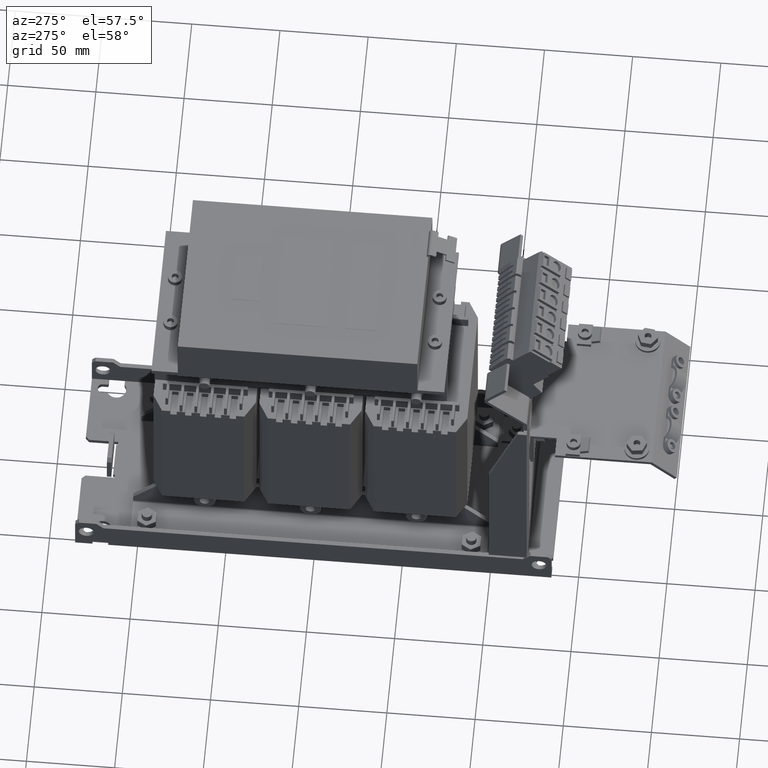
[diagram: clean part render]
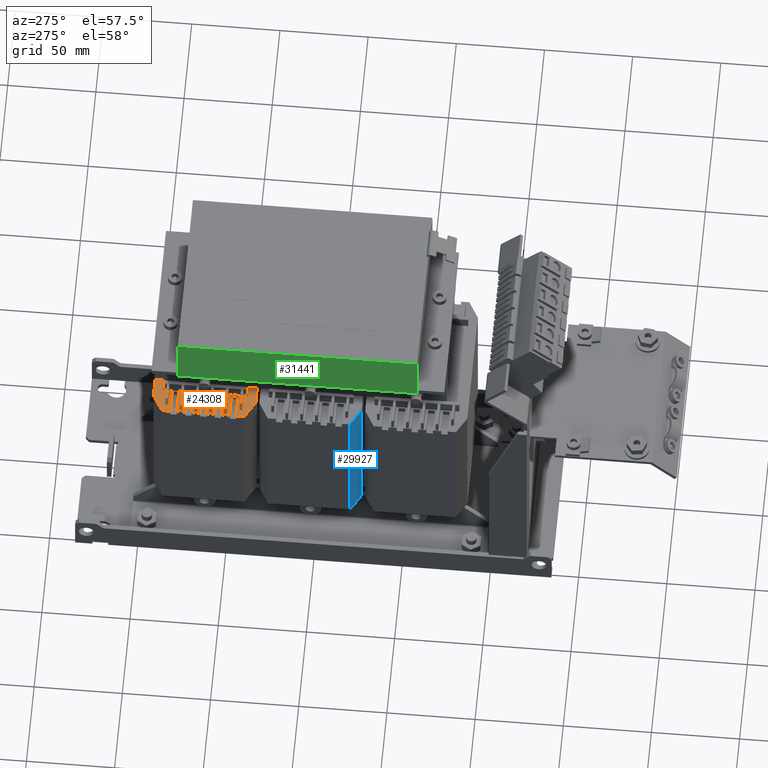
[diagram: same view with three faces highlighted in distinct colors, each labeled with its STEP entity id]
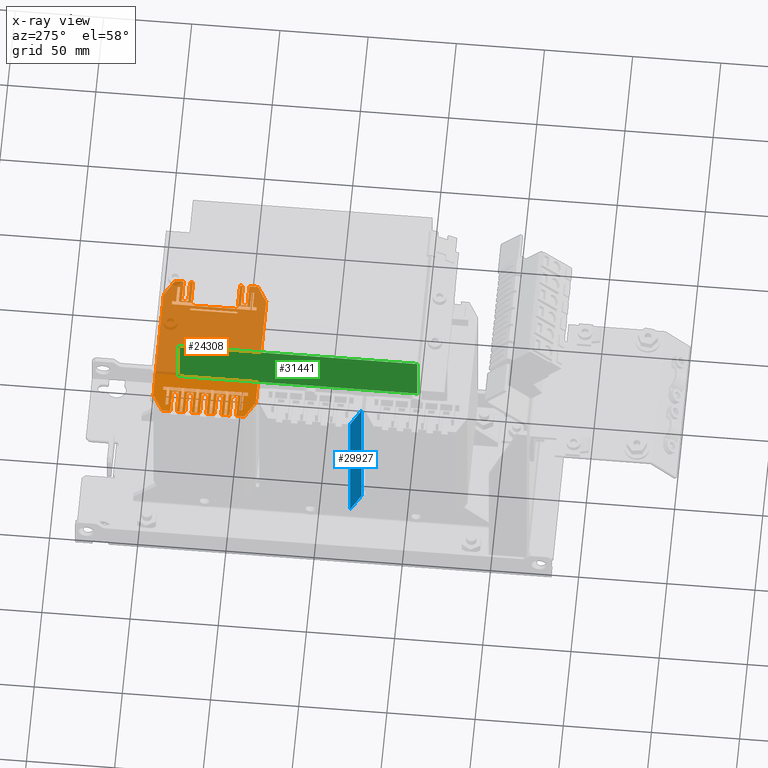
[diagram: x-ray of the same camera — body ghosted, the three highlighted faces saturated]
A machine part, auxiliary view with three faces highlighted in distinct colors.
The next image is the same camera in x-ray (body ghosted, the three faces saturated) — at least one of them is partly hidden behind the body in this view.
Their STEP definitions:

[orange] entity #24308 — the highlighted planar face has unit normal (0, 0, 1).
#15072=DIRECTION('',(0.E0,1.E0,0.E0));
#15073=VECTOR('',#15072,2.692666666667E1);
#15074=CARTESIAN_POINT('',(2.575E1,5.003666666667E1,1.242E2));
#15075=LINE('',#15074,#15073);
#15076=DIRECTION('',(1.E0,0.E0,0.E0));
#15077=VECTOR('',#15076,1.E0);
#15078=CARTESIAN_POINT('',(2.475E1,7.696333333333E1,1.242E2));
#15079=LINE('',#15078,#15077);
#15080=DIRECTION('',(0.E0,1.E0,0.E0));
#15081=VECTOR('',#15080,2.692666666667E1);
#15082=CARTESIAN_POINT('',(2.475E1,5.003666666667E1,1.242E2));
#15083=LINE('',#15082,#15081);
#15084=DIRECTION('',(1.E0,0.E0,0.E0));
#15085=VECTOR('',#15084,1.E0);
#15086=CARTESIAN_POINT('',(2.475E1,5.003666666667E1,1.242E2));
#15087=LINE('',#15086,#15085);
#15088=DIRECTION('',(0.E0,-1.E0,0.E0));
#15089=VECTOR('',#15088,1.5E0);
#15090=CARTESIAN_POINT('',(-3.940000000005E1,8.525E1,1.242E2));
#15091=LINE('',#15090,#15089);
#15092=DIRECTION('',(-1.E0,0.E0,0.E0));
#15093=VECTOR('',#15092,9.7E0);
#15094=CARTESIAN_POINT('',(-2.970000000005E1,8.375E1,1.242E2));
#15095=LINE('',#15094,#15093);
#15096=DIRECTION('',(0.E0,-1.E0,0.E0));
#15097=VECTOR('',#15096,6.9E0);
#15098=CARTESIAN_POINT('',(-2.970000000005E1,8.375E1,1.242E2));
#15099=LINE('',#15098,#15097);
#15100=DIRECTION('',(-1.E0,0.E0,0.E0));
#15101=VECTOR('',#15100,1.37E1);
#15102=CARTESIAN_POINT('',(-2.970000000005E1,7.685E1,1.242E2));
#15103=LINE('',#15102,#15101);
#15104=DIRECTION('',(0.E0,-1.E0,0.E0));
#15105=VECTOR('',#15104,1.5E0);
#15106=CARTESIAN_POINT('',(-4.340000000005E1,7.685E1,1.242E2));
#15107=LINE('',#15106,#15105);
#15108=DIRECTION('',(-1.E0,0.E0,0.E0));
#15109=VECTOR('',#15108,1.37E1);
#15110=CARTESIAN_POINT('',(-2.970000000005E1,7.535E1,1.242E2));
#15111=LINE('',#15110,#15109);
#15112=DIRECTION('',(0.E0,-1.E0,0.E0));
#15113=VECTOR('',#15112,6.9E0);
#15114=CARTESIAN_POINT('',(-2.970000000005E1,7.535E1,1.242E2));
#15115=LINE('',#15114,#15113);
#15116=DIRECTION('',(-1.E0,0.E0,0.E0));
#15117=VECTOR('',#15116,1.37E1);
#15118=CARTESIAN_POINT('',(-2.970000000005E1,6.845E1,1.242E2));
#15119=LINE('',#15118,#15117);
#15120=DIRECTION('',(0.E0,-1.E0,0.E0));
#15121=VECTOR('',#15120,1.5E0);
#15122=CARTESIAN_POINT('',(-4.340000000005E1,6.845E1,1.242E2));
#15123=LINE('',#15122,#15121);
#15124=DIRECTION('',(-1.E0,0.E0,0.E0));
#15125=VECTOR('',#15124,1.37E1);
#15126=CARTESIAN_POINT('',(-2.970000000005E1,6.695E1,1.242E2));
#15127=LINE('',#15126,#15125);
#15128=DIRECTION('',(0.E0,-1.E0,0.E0));
#15129=VECTOR('',#15128,6.9E0);
#15130=CARTESIAN_POINT('',(-2.970000000005E1,6.695E1,1.242E2));
#15131=LINE('',#15130,#15129);
#15132=DIRECTION('',(-1.E0,0.E0,0.E0));
#15133=VECTOR('',#15132,1.37E1);
#15134=CARTESIAN_POINT('',(-2.970000000005E1,6.005E1,1.242E2));
#15135=LINE('',#15134,#15133);
#15136=DIRECTION('',(0.E0,-1.E0,0.E0));
#15137=VECTOR('',#15136,1.5E0);
#15138=CARTESIAN_POINT('',(-4.340000000005E1,6.005E1,1.242E2));
#15139=LINE('',#15138,#15137);
#15140=DIRECTION('',(-1.E0,0.E0,0.E0));
#15141=VECTOR('',#15140,1.37E1);
#15142=CARTESIAN_POINT('',(-2.970000000005E1,5.855E1,1.242E2));
#15143=LINE('',#15142,#15141);
#15144=DIRECTION('',(0.E0,-1.E0,0.E0));
#15145=VECTOR('',#15144,6.9E0);
#15146=CARTESIAN_POINT('',(-2.970000000005E1,5.855E1,1.242E2));
#15147=LINE('',#15146,#15145);
#15148=DIRECTION('',(-1.E0,0.E0,0.E0));
#15149=VECTOR('',#15148,1.37E1);
#15150=CARTESIAN_POINT('',(-2.970000000005E1,5.165E1,1.242E2));
#15151=LINE('',#15150,#15149);
#15152=DIRECTION('',(0.E0,-1.E0,0.E0));
#15153=VECTOR('',#15152,1.5E0);
#15154=CARTESIAN_POINT('',(-4.340000000005E1,5.165E1,1.242E2));
#15155=LINE('',#15154,#15153);
#15156=DIRECTION('',(-1.E0,0.E0,0.E0));
#15157=VECTOR('',#15156,1.37E1);
#15158=CARTESIAN_POINT('',(-2.970000000005E1,5.015E1,1.242E2));
#15159=LINE('',#15158,#15157);
#15160=DIRECTION('',(0.E0,-1.E0,0.E0));
#15161=VECTOR('',#15160,6.9E0);
#15162=CARTESIAN_POINT('',(-2.970000000005E1,5.015E1,1.242E2));
#15163=LINE('',#15162,#15161);
#15164=DIRECTION('',(-1.E0,0.E0,0.E0));
#15165=VECTOR('',#15164,9.7E0);
#15166=CARTESIAN_POINT('',(-2.970000000005E1,4.325E1,1.242E2));
#15167=LINE('',#15166,#15165);
#15168=DIRECTION('',(0.E0,-1.E0,0.E0));
#15169=VECTOR('',#15168,1.5E0);
#15170=CARTESIAN_POINT('',(-3.940000000005E1,4.325E1,1.242E2));
#15171=LINE('',#15170,#15169);
#15172=DIRECTION('',(-1.E0,0.E0,0.E0));
#15173=VECTOR('',#15172,9.7E0);
#15174=CARTESIAN_POINT('',(-2.970000000005E1,4.175E1,1.242E2));
#15175=LINE('',#15174,#15173);
#15176=DIRECTION('',(0.E0,-1.E0,0.E0));
#15177=VECTOR('',#15176,2.342522711888E0);
#15178=CARTESIAN_POINT('',(-2.970000000005E1,4.175E1,1.242E2));
#15179=LINE('',#15178,#15177);
#15180=DIRECTION('',(-1.E0,0.E0,0.E0));
#15181=VECTOR('',#15180,2.E0);
#15182=CARTESIAN_POINT('',(-2.770000000005E1,3.940747728811E1,1.242E2));
#15183=LINE('',#15182,#15181);
#15184=DIRECTION('',(0.E0,-1.E0,0.E0));
#15185=VECTOR('',#15184,4.809252271189E1);
#15186=CARTESIAN_POINT('',(-2.770000000005E1,8.75E1,1.242E2));
#15187=LINE('',#15186,#15185);
#15188=DIRECTION('',(-1.E0,0.E0,0.E0));
#15189=VECTOR('',#15188,2.E0);
#15190=CARTESIAN_POINT('',(-2.770000000005E1,8.75E1,1.242E2));
#15191=LINE('',#15190,#15189);
#15192=DIRECTION('',(0.E0,-1.E0,0.E0));
#15193=VECTOR('',#15192,2.25E0);
#15194=CARTESIAN_POINT('',(-2.970000000005E1,8.75E1,1.242E2));
#15195=LINE('',#15194,#15193);
#15196=DIRECTION('',(-1.E0,0.E0,0.E0));
#15197=VECTOR('',#15196,9.7E0);
#15198=CARTESIAN_POINT('',(-2.970000000005E1,8.525E1,1.242E2));
#15199=LINE('',#15198,#15197);
#15648=DIRECTION('',(0.E0,1.E0,0.E0));
#15649=VECTOR('',#15648,1.5E0);
#15650=CARTESIAN_POINT('',(3.939999999995E1,4.175E1,1.242E2));
#15651=LINE('',#15650,#15649);
#15652=DIRECTION('',(1.E0,0.E0,0.E0));
#15653=VECTOR('',#15652,9.7E0);
#15654=CARTESIAN_POINT('',(2.969999999995E1,4.325E1,1.242E2));
#15655=LINE('',#15654,#15653);
#15656=DIRECTION('',(0.E0,1.E0,0.E0));
#15657=VECTOR('',#15656,6.9E0);
#15658=CARTESIAN_POINT('',(2.969999999995E1,4.325E1,1.242E2));
#15659=LINE('',#15658,#15657);
#15660=DIRECTION('',(1.E0,0.E0,0.E0));
#15661=VECTOR('',#15660,1.37E1);
#15662=CARTESIAN_POINT('',(2.969999999995E1,5.015E1,1.242E2));
#15663=LINE('',#15662,#15661);
#15664=DIRECTION('',(5.329070518201E-14,1.E0,0.E0));
#15665=VECTOR('',#15664,1.6E0);
#15666=CARTESIAN_POINT('',(4.339999999995E1,4.855E1,1.242E2));
#15667=LINE('',#15666,#15665);
#15668=DIRECTION('',(-1.E0,0.E0,0.E0));
#15669=VECTOR('',#15668,1.3E1);
#15670=CARTESIAN_POINT('',(4.339999999995E1,4.855E1,1.242E2));
#15671=LINE('',#15670,#15669);
#15672=DIRECTION('',(0.E0,1.E0,0.E0));
#15673=VECTOR('',#15672,3.7E0);
#15674=CARTESIAN_POINT('',(3.039999999995E1,4.485E1,1.242E2));
#15675=LINE('',#15674,#15673);
#15676=DIRECTION('',(-1.E0,0.E0,0.E0));
#15677=VECTOR('',#15676,1.3E1);
#15678=CARTESIAN_POINT('',(4.339999999995E1,4.485E1,1.242E2));
#15679=LINE('',#15678,#15677);
#15680=DIRECTION('',(0.E0,1.E0,0.E0));
#15681=VECTOR('',#15680,4.865172442699E0);
#15682=CARTESIAN_POINT('',(4.339999999995E1,3.998482755730E1,1.242E2));
#15683=LINE('',#15682,#15681);
#15684=DIRECTION('',(8.660254037844E-1,5.E-1,0.E0));
#15685=VECTOR('',#15684,1.096965511460E1);
#15686=CARTESIAN_POINT('',(3.389999999995E1,3.45E1,1.242E2));
#15687=LINE('',#15686,#15685);
#15688=DIRECTION('',(1.E0,0.E0,0.E0));
#15689=VECTOR('',#15688,6.78E1);
#15690=CARTESIAN_POINT('',(-3.390000000005E1,3.45E1,1.242E2));
#15691=LINE('',#15690,#15689);
#15692=DIRECTION('',(8.660254037844E-1,-5.E-1,0.E0));
#15693=VECTOR('',#15692,1.131606527612E1);
#15694=CARTESIAN_POINT('',(-4.370000000005E1,4.015803263806E1,1.242E2));
#15695=LINE('',#15694,#15693);
#15696=DIRECTION('',(0.E0,-1.E0,0.E0));
#15697=VECTOR('',#15696,4.691967361942E0);
#15698=CARTESIAN_POINT('',(-4.370000000005E1,4.485E1,1.242E2));
#15699=LINE('',#15698,#15697);
#15700=DIRECTION('',(1.E0,0.E0,0.E0));
#15701=VECTOR('',#15700,1.33E1);
#15702=CARTESIAN_POINT('',(-4.370000000005E1,4.485E1,1.242E2));
#15703=LINE('',#15702,#15701);
#15704=DIRECTION('',(0.E0,-1.E0,0.E0));
#15705=VECTOR('',#15704,3.7E0);
#15706=CARTESIAN_POINT('',(-3.040000000005E1,4.855E1,1.242E2));
#15707=LINE('',#15706,#15705);
#15708=DIRECTION('',(1.E0,0.E0,0.E0));
#15709=VECTOR('',#15708,1.33E1);
#15710=CARTESIAN_POINT('',(-4.370000000005E1,4.855E1,1.242E2));
#15711=LINE('',#15710,#15709);
#15712=DIRECTION('',(0.E0,-1.E0,0.E0));
#15713=VECTOR('',#15712,4.7E0);
#15714=CARTESIAN_POINT('',(-4.370000000005E1,5.325E1,1.242E2));
#15715=LINE('',#15714,#15713);
#15716=DIRECTION('',(1.E0,0.E0,0.E0));
#15717=VECTOR('',#15716,1.33E1);
#15718=CARTESIAN_POINT('',(-4.370000000005E1,5.325E1,1.242E2));
#15719=LINE('',#15718,#15717);
#15720=DIRECTION('',(0.E0,-1.E0,0.E0));
#15721=VECTOR('',#15720,3.7E0);
#15722=CARTESIAN_POINT('',(-3.040000000005E1,5.695E1,1.242E2));
#15723=LINE('',#15722,#15721);
#15724=DIRECTION('',(1.E0,0.E0,0.E0));
#15725=VECTOR('',#15724,1.33E1);
#15726=CARTESIAN_POINT('',(-4.370000000005E1,5.695E1,1.242E2));
#15727=LINE('',#15726,#15725);
#15728=DIRECTION('',(0.E0,-1.E0,0.E0));
#15729=VECTOR('',#15728,4.7E0);
#15730=CARTESIAN_POINT('',(-4.370000000005E1,6.165E1,1.242E2));
#15731=LINE('',#15730,#15729);
#15732=DIRECTION('',(1.E0,0.E0,0.E0));
#15733=VECTOR('',#15732,1.33E1);
#15734=CARTESIAN_POINT('',(-4.370000000005E1,6.165E1,1.242E2));
#15735=LINE('',#15734,#15733);
#15736=DIRECTION('',(0.E0,-1.E0,0.E0));
#15737=VECTOR('',#15736,3.7E0);
#15738=CARTESIAN_POINT('',(-3.040000000005E1,6.535E1,1.242E2));
#15739=LINE('',#15738,#15737);
#15740=DIRECTION('',(1.E0,0.E0,0.E0));
#15741=VECTOR('',#15740,1.33E1);
#15742=CARTESIAN_POINT('',(-4.370000000005E1,6.535E1,1.242E2));
#15743=LINE('',#15742,#15741);
#15744=DIRECTION('',(0.E0,-1.E0,0.E0));
#15745=VECTOR('',#15744,4.7E0);
#15746=CARTESIAN_POINT('',(-4.370000000005E1,7.005E1,1.242E2));
#15747=LINE('',#15746,#15745);
#15748=DIRECTION('',(1.E0,0.E0,0.E0));
#15749=VECTOR('',#15748,1.33E1);
#15750=CARTESIAN_POINT('',(-4.370000000005E1,7.005E1,1.242E2));
#15751=LINE('',#15750,#15749);
#15752=DIRECTION('',(0.E0,-1.E0,0.E0));
#15753=VECTOR('',#15752,3.7E0);
#15754=CARTESIAN_POINT('',(-3.040000000005E1,7.375E1,1.242E2));
#15755=LINE('',#15754,#15753);
#15756=DIRECTION('',(1.E0,0.E0,0.E0));
#15757=VECTOR('',#15756,1.33E1);
#15758=CARTESIAN_POINT('',(-4.370000000005E1,7.375E1,1.242E2));
#15759=LINE('',#15758,#15757);
#15760=DIRECTION('',(0.E0,-1.E0,0.E0));
#15761=VECTOR('',#15760,4.7E0);
#15762=CARTESIAN_POINT('',(-4.370000000005E1,7.845E1,1.242E2));
#15763=LINE('',#15762,#15761);
#15764=DIRECTION('',(1.E0,0.E0,0.E0));
#15765=VECTOR('',#15764,1.33E1);
#15766=CARTESIAN_POINT('',(-4.370000000005E1,7.845E1,1.242E2));
#15767=LINE('',#15766,#15765);
#15768=DIRECTION('',(0.E0,-1.E0,0.E0));
#15769=VECTOR('',#15768,3.7E0);
#15770=CARTESIAN_POINT('',(-3.040000000005E1,8.215E1,1.242E2));
#15771=LINE('',#15770,#15769);
#15772=DIRECTION('',(1.E0,0.E0,0.E0));
#15773=VECTOR('',#15772,1.33E1);
#15774=CARTESIAN_POINT('',(-4.370000000005E1,8.215E1,1.242E2));
#15775=LINE('',#15774,#15773);
#15776=DIRECTION('',(0.E0,-1.E0,0.E0));
#15777=VECTOR('',#15776,4.691967361942E0);
#15778=CARTESIAN_POINT('',(-4.370000000005E1,8.684196736194E1,1.242E2));
#15779=LINE('',#15778,#15777);
#15780=DIRECTION('',(-8.660254037844E-1,-5.E-1,0.E0));
#15781=VECTOR('',#15780,1.131606527612E1);
#15782=CARTESIAN_POINT('',(-3.390000000005E1,9.25E1,1.242E2));
#15783=LINE('',#15782,#15781);
#15784=DIRECTION('',(-1.E0,0.E0,0.E0));
#15785=VECTOR('',#15784,6.78E1);
#15786=CARTESIAN_POINT('',(3.389999999995E1,9.25E1,1.242E2));
#15787=LINE('',#15786,#15785);
#15788=DIRECTION('',(-8.660254037844E-1,5.E-1,0.E0));
#15789=VECTOR('',#15788,1.096965511460E1);
#15790=CARTESIAN_POINT('',(4.339999999995E1,8.701517244270E1,1.242E2));
#15791=LINE('',#15790,#15789);
#15792=DIRECTION('',(0.E0,1.E0,0.E0));
#15793=VECTOR('',#15792,4.865172442699E0);
#15794=CARTESIAN_POINT('',(4.339999999995E1,8.215E1,1.242E2));
#15795=LINE('',#15794,#15793);
#15796=DIRECTION('',(-1.E0,0.E0,0.E0));
#15797=VECTOR('',#15796,1.3E1);
#15798=CARTESIAN_POINT('',(4.339999999995E1,8.215E1,1.242E2));
#15799=LINE('',#15798,#15797);
#15800=DIRECTION('',(0.E0,1.E0,0.E0));
#15801=VECTOR('',#15800,3.7E0);
#15802=CARTESIAN_POINT('',(3.039999999995E1,7.845E1,1.242E2));
#15803=LINE('',#15802,#15801);
#15804=DIRECTION('',(-1.E0,0.E0,0.E0));
#15805=VECTOR('',#15804,1.3E1);
#15806=CARTESIAN_POINT('',(4.339999999995E1,7.845E1,1.242E2));
#15807=LINE('',#15806,#15805);
#15808=DIRECTION('',(-5.329070518201E-14,1.E0,0.E0));
#15809=VECTOR('',#15808,1.6E0);
#15810=CARTESIAN_POINT('',(4.339999999995E1,7.685E1,1.242E2));
#15811=LINE('',#15810,#15809);
#15812=DIRECTION('',(1.E0,0.E0,0.E0));
#15813=VECTOR('',#15812,1.37E1);
#15814=CARTESIAN_POINT('',(2.969999999995E1,7.685E1,1.242E2));
#15815=LINE('',#15814,#15813);
#15816=DIRECTION('',(0.E0,1.E0,0.E0));
#15817=VECTOR('',#15816,6.9E0);
#15818=CARTESIAN_POINT('',(2.969999999995E1,7.685E1,1.242E2));
#15819=LINE('',#15818,#15817);
#15820=DIRECTION('',(1.E0,0.E0,0.E0));
#15821=VECTOR('',#15820,9.7E0);
#15822=CARTESIAN_POINT('',(2.969999999995E1,8.375E1,1.242E2));
#15823=LINE('',#15822,#15821);
#15824=DIRECTION('',(0.E0,1.E0,0.E0));
#15825=VECTOR('',#15824,1.5E0);
#15826=CARTESIAN_POINT('',(3.939999999995E1,8.375E1,1.242E2));
#15827=LINE('',#15826,#15825);
#15828=DIRECTION('',(1.E0,0.E0,0.E0));
#15829=VECTOR('',#15828,9.7E0);
#15830=CARTESIAN_POINT('',(2.969999999995E1,8.525E1,1.242E2));
#15831=LINE('',#15830,#15829);
#15832=DIRECTION('',(0.E0,1.E0,0.E0));
#15833=VECTOR('',#15832,2.25E0);
#15834=CARTESIAN_POINT('',(2.969999999995E1,8.525E1,1.242E2));
#15835=LINE('',#15834,#15833);
#15836=DIRECTION('',(1.E0,0.E0,0.E0));
#15837=VECTOR('',#15836,2.E0);
#15838=CARTESIAN_POINT('',(2.769999999995E1,8.75E1,1.242E2));
#15839=LINE('',#15838,#15837);
#15840=DIRECTION('',(0.E0,1.E0,0.E0));
#15841=VECTOR('',#15840,4.8E1);
#15842=CARTESIAN_POINT('',(2.769999999995E1,3.95E1,1.242E2));
#15843=LINE('',#15842,#15841);
#15844=DIRECTION('',(1.E0,0.E0,0.E0));
#15845=VECTOR('',#15844,2.E0);
#15846=CARTESIAN_POINT('',(2.769999999995E1,3.95E1,1.242E2));
#15847=LINE('',#15846,#15845);
#15848=DIRECTION('',(0.E0,1.E0,0.E0));
#15849=VECTOR('',#15848,2.25E0);
#15850=CARTESIAN_POINT('',(2.969999999995E1,3.95E1,1.242E2));
#15851=LINE('',#15850,#15849);
#15852=DIRECTION('',(1.E0,0.E0,0.E0));
#15853=VECTOR('',#15852,9.7E0);
#15854=CARTESIAN_POINT('',(2.969999999995E1,4.175E1,1.242E2));
#15855=LINE('',#15854,#15853);
#21390=CARTESIAN_POINT('',(-3.390000000005E1,9.25E1,1.242E2));
#21391=CARTESIAN_POINT('',(-4.370000000005E1,8.684196736194E1,1.242E2));
#21392=VERTEX_POINT('',#21390);
#21393=VERTEX_POINT('',#21391);
#21394=CARTESIAN_POINT('',(-4.370000000005E1,4.015803263806E1,1.242E2));
#21395=CARTESIAN_POINT('',(-3.390000000005E1,3.45E1,1.242E2));
#21396=VERTEX_POINT('',#21394);
#21397=VERTEX_POINT('',#21395);
#21398=CARTESIAN_POINT('',(3.389999999995E1,3.45E1,1.242E2));
#21399=VERTEX_POINT('',#21398);
#21400=CARTESIAN_POINT('',(4.339999999995E1,3.998482755730E1,1.242E2));
#21401=VERTEX_POINT('',#21400);
#21402=CARTESIAN_POINT('',(4.339999999995E1,8.701517244270E1,1.242E2));
#21403=CARTESIAN_POINT('',(3.389999999995E1,9.25E1,1.242E2));
#21404=VERTEX_POINT('',#21402);
#21405=VERTEX_POINT('',#21403);
#22046=CARTESIAN_POINT('',(2.769999999995E1,3.95E1,1.242E2));
#22047=CARTESIAN_POINT('',(2.769999999995E1,8.75E1,1.242E2));
#22048=VERTEX_POINT('',#22046);
#22049=VERTEX_POINT('',#22047);
#22058=CARTESIAN_POINT('',(2.969999999995E1,8.75E1,1.242E2));
#22059=VERTEX_POINT('',#22058);
#22060=CARTESIAN_POINT('',(2.969999999995E1,3.95E1,1.242E2));
#22061=VERTEX_POINT('',#22060);
#22086=CARTESIAN_POINT('',(-2.770000000005E1,8.75E1,1.242E2));
#22087=CARTESIAN_POINT('',(-2.770000000005E1,3.940747728811E1,1.242E2));
#22088=VERTEX_POINT('',#22086);
#22089=VERTEX_POINT('',#22087);
#22098=CARTESIAN_POINT('',(-2.970000000005E1,3.940747728811E1,1.242E2));
#22099=VERTEX_POINT('',#22098);
#22100=CARTESIAN_POINT('',(-2.970000000005E1,8.75E1,1.242E2));
#22101=VERTEX_POINT('',#22100);
#22170=CARTESIAN_POINT('',(-3.040000000005E1,8.215E1,1.242E2));
#22171=CARTESIAN_POINT('',(-3.040000000005E1,7.845E1,1.242E2));
#22172=VERTEX_POINT('',#22170);
#22173=VERTEX_POINT('',#22171);
#22174=CARTESIAN_POINT('',(-3.040000000005E1,7.375E1,1.242E2));
#22175=CARTESIAN_POINT('',(-3.040000000005E1,7.005E1,1.242E2));
#22176=VERTEX_POINT('',#22174);
#22177=VERTEX_POINT('',#22175);
#22178=CARTESIAN_POINT('',(-3.040000000005E1,6.535E1,1.242E2));
#22179=CARTESIAN_POINT('',(-3.040000000005E1,6.165E1,1.242E2));
#22180=VERTEX_POINT('',#22178);
#22181=VERTEX_POINT('',#22179);
#22182=CARTESIAN_POINT('',(-3.040000000005E1,5.695E1,1.242E2));
#22183=CARTESIAN_POINT('',(-3.040000000005E1,5.325E1,1.242E2));
#22184=VERTEX_POINT('',#22182);
#22185=VERTEX_POINT('',#22183);
#22186=CARTESIAN_POINT('',(-3.040000000005E1,4.855E1,1.242E2));
#22187=CARTESIAN_POINT('',(-3.040000000005E1,4.485E1,1.242E2));
#22188=VERTEX_POINT('',#22186);
#22189=VERTEX_POINT('',#22187);
#22230=CARTESIAN_POINT('',(-4.370000000005E1,8.215E1,1.242E2));
#22231=VERTEX_POINT('',#22230);
#22232=CARTESIAN_POINT('',(-4.370000000005E1,7.845E1,1.242E2));
#22233=VERTEX_POINT('',#22232);
#22234=CARTESIAN_POINT('',(-4.370000000005E1,7.375E1,1.242E2));
#22235=VERTEX_POINT('',#22234);
#22236=CARTESIAN_POINT('',(-4.370000000005E1,7.005E1,1.242E2));
#22237=VERTEX_POINT('',#22236);
#22238=CARTESIAN_POINT('',(-4.370000000005E1,6.535E1,1.242E2));
#22239=VERTEX_POINT('',#22238);
#22240=CARTESIAN_POINT('',(-4.370000000005E1,6.165E1,1.242E2));
#22241=VERTEX_POINT('',#22240);
#22242=CARTESIAN_POINT('',(-4.370000000005E1,5.695E1,1.242E2));
#22243=VERTEX_POINT('',#22242);
#22244=CARTESIAN_POINT('',(-4.370000000005E1,5.325E1,1.242E2));
#22245=VERTEX_POINT('',#22244);
#22246=CARTESIAN_POINT('',(-4.370000000005E1,4.855E1,1.242E2));
#22247=VERTEX_POINT('',#22246);
#22248=CARTESIAN_POINT('',(-4.370000000005E1,4.485E1,1.242E2));
#22249=VERTEX_POINT('',#22248);
#22450=CARTESIAN_POINT('',(3.039999999995E1,4.485E1,1.242E2));
#22451=CARTESIAN_POINT('',(3.039999999995E1,4.855E1,1.242E2));
#22452=VERTEX_POINT('',#22450);
#22453=VERTEX_POINT('',#22451);
#22466=CARTESIAN_POINT('',(3.039999999995E1,7.845E1,1.242E2));
#22467=CARTESIAN_POINT('',(3.039999999995E1,8.215E1,1.242E2));
#22468=VERTEX_POINT('',#22466);
#22469=VERTEX_POINT('',#22467);
#22510=CARTESIAN_POINT('',(4.339999999995E1,4.855E1,1.242E2));
#22511=VERTEX_POINT('',#22510);
#22512=CARTESIAN_POINT('',(4.339999999995E1,4.485E1,1.242E2));
#22513=VERTEX_POINT('',#22512);
#22526=CARTESIAN_POINT('',(4.339999999995E1,8.215E1,1.242E2));
#22527=VERTEX_POINT('',#22526);
#22528=CARTESIAN_POINT('',(4.339999999995E1,7.845E1,1.242E2));
#22529=VERTEX_POINT('',#22528);
#22706=CARTESIAN_POINT('',(2.969999999995E1,5.015E1,1.242E2));
#22707=CARTESIAN_POINT('',(4.339999999995E1,5.015E1,1.242E2));
#22708=VERTEX_POINT('',#22706);
#22709=VERTEX_POINT('',#22707);
#22726=CARTESIAN_POINT('',(2.969999999995E1,7.685E1,1.242E2));
#22727=CARTESIAN_POINT('',(4.339999999995E1,7.685E1,1.242E2));
#22728=VERTEX_POINT('',#22726);
#22729=VERTEX_POINT('',#22727);
#22830=CARTESIAN_POINT('',(-4.340000000005E1,7.685E1,1.242E2));
#22831=CARTESIAN_POINT('',(-4.340000000005E1,7.535E1,1.242E2));
#22832=VERTEX_POINT('',#22830);
#22833=VERTEX_POINT('',#22831);
#22834=CARTESIAN_POINT('',(-4.340000000005E1,6.845E1,1.242E2));
#22835=CARTESIAN_POINT('',(-4.340000000005E1,6.695E1,1.242E2));
#22836=VERTEX_POINT('',#22834);
#22837=VERTEX_POINT('',#22835);
#22838=CARTESIAN_POINT('',(-4.340000000005E1,6.005E1,1.242E2));
#22839=CARTESIAN_POINT('',(-4.340000000005E1,5.855E1,1.242E2));
#22840=VERTEX_POINT('',#22838);
#22841=VERTEX_POINT('',#22839);
#22842=CARTESIAN_POINT('',(-4.340000000005E1,5.165E1,1.242E2));
#22843=CARTESIAN_POINT('',(-4.340000000005E1,5.015E1,1.242E2));
#22844=VERTEX_POINT('',#22842);
#22845=VERTEX_POINT('',#22843);
#22878=CARTESIAN_POINT('',(-2.970000000005E1,7.685E1,1.242E2));
#22879=VERTEX_POINT('',#22878);
#22880=CARTESIAN_POINT('',(-2.970000000005E1,7.535E1,1.242E2));
#22881=VERTEX_POINT('',#22880);
#22882=CARTESIAN_POINT('',(-2.970000000005E1,6.845E1,1.242E2));
#22883=VERTEX_POINT('',#22882);
#22884=CARTESIAN_POINT('',(-2.970000000005E1,6.695E1,1.242E2));
#22885=VERTEX_POINT('',#22884);
#22886=CARTESIAN_POINT('',(-2.970000000005E1,6.005E1,1.242E2));
#22887=VERTEX_POINT('',#22886);
#22888=CARTESIAN_POINT('',(-2.970000000005E1,5.855E1,1.242E2));
#22889=VERTEX_POINT('',#22888);
#22890=CARTESIAN_POINT('',(-2.970000000005E1,5.165E1,1.242E2));
#22891=VERTEX_POINT('',#22890);
#22892=CARTESIAN_POINT('',(-2.970000000005E1,5.015E1,1.242E2));
#22893=VERTEX_POINT('',#22892);
#23006=CARTESIAN_POINT('',(2.575E1,5.003666666667E1,1.242E2));
#23007=CARTESIAN_POINT('',(2.575E1,7.696333333333E1,1.242E2));
#23008=VERTEX_POINT('',#23006);
#23009=VERTEX_POINT('',#23007);
#23018=CARTESIAN_POINT('',(2.475E1,5.003666666667E1,1.242E2));
#23019=CARTESIAN_POINT('',(2.475E1,7.696333333333E1,1.242E2));
#23020=VERTEX_POINT('',#23018);
#23021=VERTEX_POINT('',#23019);
#23414=CARTESIAN_POINT('',(-3.940000000005E1,8.525E1,1.242E2));
#23415=CARTESIAN_POINT('',(-3.940000000005E1,8.375E1,1.242E2));
#23416=VERTEX_POINT('',#23414);
#23417=VERTEX_POINT('',#23415);
#23418=CARTESIAN_POINT('',(-3.940000000005E1,4.325E1,1.242E2));
#23419=CARTESIAN_POINT('',(-3.940000000005E1,4.175E1,1.242E2));
#23420=VERTEX_POINT('',#23418);
#23421=VERTEX_POINT('',#23419);
#23438=CARTESIAN_POINT('',(-2.970000000005E1,8.525E1,1.242E2));
#23439=VERTEX_POINT('',#23438);
#23440=CARTESIAN_POINT('',(-2.970000000005E1,8.375E1,1.242E2));
#23441=VERTEX_POINT('',#23440);
#23442=CARTESIAN_POINT('',(-2.970000000005E1,4.325E1,1.242E2));
#23443=VERTEX_POINT('',#23442);
#23444=CARTESIAN_POINT('',(-2.970000000005E1,4.175E1,1.242E2));
#23445=VERTEX_POINT('',#23444);
#23526=CARTESIAN_POINT('',(3.939999999995E1,4.175E1,1.242E2));
#23527=CARTESIAN_POINT('',(3.939999999995E1,4.325E1,1.242E2));
#23528=VERTEX_POINT('',#23526);
#23529=VERTEX_POINT('',#23527);
#23530=CARTESIAN_POINT('',(3.939999999995E1,8.375E1,1.242E2));
#23531=CARTESIAN_POINT('',(3.939999999995E1,8.525E1,1.242E2));
#23532=VERTEX_POINT('',#23530);
#23533=VERTEX_POINT('',#23531);
#23550=CARTESIAN_POINT('',(2.969999999995E1,4.325E1,1.242E2));
#23551=VERTEX_POINT('',#23550);
#23552=CARTESIAN_POINT('',(2.969999999995E1,4.175E1,1.242E2));
#23553=VERTEX_POINT('',#23552);
#23554=CARTESIAN_POINT('',(2.969999999995E1,8.525E1,1.242E2));
#23555=VERTEX_POINT('',#23554);
#23556=CARTESIAN_POINT('',(2.969999999995E1,8.375E1,1.242E2));
#23557=VERTEX_POINT('',#23556);
#24129=CARTESIAN_POINT('',(0.E0,0.E0,1.242E2));
#24130=DIRECTION('',(0.E0,0.E0,1.E0));
#24131=DIRECTION('',(1.E0,0.E0,0.E0));
#24132=AXIS2_PLACEMENT_3D('',#24129,#24130,#24131);
#24133=PLANE('',#24132);
#24135=ORIENTED_EDGE('',*,*,#24134,.T.);
#24137=ORIENTED_EDGE('',*,*,#24136,.F.);
#24139=ORIENTED_EDGE('',*,*,#24138,.T.);
#24141=ORIENTED_EDGE('',*,*,#24140,.T.);
#24143=ORIENTED_EDGE('',*,*,#24142,.F.);
#24145=ORIENTED_EDGE('',*,*,#24144,.T.);
#24147=ORIENTED_EDGE('',*,*,#24146,.F.);
#24149=ORIENTED_EDGE('',*,*,#24148,.F.);
#24151=ORIENTED_EDGE('',*,*,#24150,.F.);
#24153=ORIENTED_EDGE('',*,*,#24152,.F.);
#24155=ORIENTED_EDGE('',*,*,#24154,.F.);
#24157=ORIENTED_EDGE('',*,*,#24156,.F.);
#24159=ORIENTED_EDGE('',*,*,#24158,.F.);
#24161=ORIENTED_EDGE('',*,*,#24160,.T.);
#24163=ORIENTED_EDGE('',*,*,#24162,.F.);
#24165=ORIENTED_EDGE('',*,*,#24164,.F.);
#24167=ORIENTED_EDGE('',*,*,#24166,.F.);
#24169=ORIENTED_EDGE('',*,*,#24168,.T.);
#24171=ORIENTED_EDGE('',*,*,#24170,.F.);
#24173=ORIENTED_EDGE('',*,*,#24172,.F.);
#24175=ORIENTED_EDGE('',*,*,#24174,.F.);
#24177=ORIENTED_EDGE('',*,*,#24176,.T.);
#24179=ORIENTED_EDGE('',*,*,#24178,.F.);
#24181=ORIENTED_EDGE('',*,*,#24180,.F.);
#24183=ORIENTED_EDGE('',*,*,#24182,.F.);
#24185=ORIENTED_EDGE('',*,*,#24184,.T.);
#24187=ORIENTED_EDGE('',*,*,#24186,.F.);
#24189=ORIENTED_EDGE('',*,*,#24188,.F.);
#24191=ORIENTED_EDGE('',*,*,#24190,.F.);
#24193=ORIENTED_EDGE('',*,*,#24192,.T.);
#24195=ORIENTED_EDGE('',*,*,#24194,.F.);
#24197=ORIENTED_EDGE('',*,*,#24196,.F.);
#24199=ORIENTED_EDGE('',*,*,#24198,.F.);
#24201=ORIENTED_EDGE('',*,*,#24200,.F.);
#24203=ORIENTED_EDGE('',*,*,#24202,.F.);
#24205=ORIENTED_EDGE('',*,*,#24204,.F.);
#24207=ORIENTED_EDGE('',*,*,#24206,.F.);
#24209=ORIENTED_EDGE('',*,*,#24208,.T.);
#24211=ORIENTED_EDGE('',*,*,#24210,.F.);
#24213=ORIENTED_EDGE('',*,*,#24212,.F.);
#24215=ORIENTED_EDGE('',*,*,#24214,.F.);
#24217=ORIENTED_EDGE('',*,*,#24216,.F.);
#24219=ORIENTED_EDGE('',*,*,#24218,.T.);
#24221=ORIENTED_EDGE('',*,*,#24220,.T.);
#24223=ORIENTED_EDGE('',*,*,#24222,.T.);
#24225=ORIENTED_EDGE('',*,*,#24224,.F.);
#24227=ORIENTED_EDGE('',*,*,#24226,.T.);
#24229=ORIENTED_EDGE('',*,*,#24228,.F.);
#24231=ORIENTED_EDGE('',*,*,#24230,.F.);
#24233=ORIENTED_EDGE('',*,*,#24232,.T.);
#24235=ORIENTED_EDGE('',*,*,#24234,.T.);
#24237=ORIENTED_EDGE('',*,*,#24236,.T.);
#24238=EDGE_LOOP('',(#24135,#24137,#24139,#24141,#24143,#24145,#24147,#24149,
#24151,#24153,#24155,#24157,#24159,#24161,#24163,#24165,#24167,#24169,#24171,
#24173,#24175,#24177,#24179,#24181,#24183,#24185,#24187,#24189,#24191,#24193,
#24195,#24197,#24199,#24201,#24203,#24205,#24207,#24209,#24211,#24213,#24215,
#24217,#24219,#24221,#24223,#24225,#24227,#24229,#24231,#24233,#24235,#24237));
#24239=FACE_OUTER_BOUND('',#24238,.F.);
#24241=ORIENTED_EDGE('',*,*,#24240,.T.);
#24243=ORIENTED_EDGE('',*,*,#24242,.F.);
#24245=ORIENTED_EDGE('',*,*,#24244,.F.);
#24247=ORIENTED_EDGE('',*,*,#24246,.T.);
#24248=EDGE_LOOP('',(#24241,#24243,#24245,#24247));
#24249=FACE_BOUND('',#24248,.F.);
#24251=ORIENTED_EDGE('',*,*,#24250,.T.);
#24253=ORIENTED_EDGE('',*,*,#24252,.F.);
#24255=ORIENTED_EDGE('',*,*,#24254,.T.);
#24257=ORIENTED_EDGE('',*,*,#24256,.T.);
#24259=ORIENTED_EDGE('',*,*,#24258,.T.);
#24261=ORIENTED_EDGE('',*,*,#24260,.F.);
#24263=ORIENTED_EDGE('',*,*,#24262,.T.);
#24265=ORIENTED_EDGE('',*,*,#24264,.T.);
#24267=ORIENTED_EDGE('',*,*,#24266,.T.);
#24269=ORIENTED_EDGE('',*,*,#24268,.F.);
#24271=ORIENTED_EDGE('',*,*,#24270,.T.);
#24273=ORIENTED_EDGE('',*,*,#24272,.T.);
#24275=ORIENTED_EDGE('',*,*,#24274,.T.);
#24277=ORIENTED_EDGE('',*,*,#24276,.F.);
#24279=ORIENTED_EDGE('',*,*,#24278,.T.);
#24281=ORIENTED_EDGE('',*,*,#24280,.T.);
#24283=ORIENTED_EDGE('',*,*,#24282,.T.);
#24285=ORIENTED_EDGE('',*,*,#24284,.F.);
#24287=ORIENTED_EDGE('',*,*,#24286,.T.);
#24289=ORIENTED_EDGE('',*,*,#24288,.T.);
#24291=ORIENTED_EDGE('',*,*,#24290,.T.);
#24293=ORIENTED_EDGE('',*,*,#24292,.F.);
#24295=ORIENTED_EDGE('',*,*,#24294,.T.);
#24297=ORIENTED_EDGE('',*,*,#24296,.F.);
#24299=ORIENTED_EDGE('',*,*,#24298,.F.);
#24301=ORIENTED_EDGE('',*,*,#24300,.T.);
#24303=ORIENTED_EDGE('',*,*,#24302,.T.);
#24305=ORIENTED_EDGE('',*,*,#24304,.T.);
#24306=EDGE_LOOP('',(#24251,#24253,#24255,#24257,#24259,#24261,#24263,#24265,
#24267,#24269,#24271,#24273,#24275,#24277,#24279,#24281,#24283,#24285,#24287,
#24289,#24291,#24293,#24295,#24297,#24299,#24301,#24303,#24305));
#24307=FACE_BOUND('',#24306,.F.);
#24308=ADVANCED_FACE('',(#24239,#24249,#24307),#24133,.T.);
#24134=EDGE_CURVE('',#23528,#23529,#15651,.T.);
#24136=EDGE_CURVE('',#23551,#23529,#15655,.T.);
#24138=EDGE_CURVE('',#23551,#22708,#15659,.T.);
#24140=EDGE_CURVE('',#22708,#22709,#15663,.T.);
#24142=EDGE_CURVE('',#22511,#22709,#15667,.T.);
#24144=EDGE_CURVE('',#22511,#22453,#15671,.T.);
#24146=EDGE_CURVE('',#22452,#22453,#15675,.T.);
#24148=EDGE_CURVE('',#22513,#22452,#15679,.T.);
#24150=EDGE_CURVE('',#21401,#22513,#15683,.T.);
#24152=EDGE_CURVE('',#21399,#21401,#15687,.T.);
#24154=EDGE_CURVE('',#21397,#21399,#15691,.T.);
#24156=EDGE_CURVE('',#21396,#21397,#15695,.T.);
#24158=EDGE_CURVE('',#22249,#21396,#15699,.T.);
#24160=EDGE_CURVE('',#22249,#22189,#15703,.T.);
#24162=EDGE_CURVE('',#22188,#22189,#15707,.T.);
#24164=EDGE_CURVE('',#22247,#22188,#15711,.T.);
#24166=EDGE_CURVE('',#22245,#22247,#15715,.T.);
#24168=EDGE_CURVE('',#22245,#22185,#15719,.T.);
#24170=EDGE_CURVE('',#22184,#22185,#15723,.T.);
#24172=EDGE_CURVE('',#22243,#22184,#15727,.T.);
#24174=EDGE_CURVE('',#22241,#22243,#15731,.T.);
#24176=EDGE_CURVE('',#22241,#22181,#15735,.T.);
#24178=EDGE_CURVE('',#22180,#22181,#15739,.T.);
#24180=EDGE_CURVE('',#22239,#22180,#15743,.T.);
#24182=EDGE_CURVE('',#22237,#22239,#15747,.T.);
#24184=EDGE_CURVE('',#22237,#22177,#15751,.T.);
#24186=EDGE_CURVE('',#22176,#22177,#15755,.T.);
#24188=EDGE_CURVE('',#22235,#22176,#15759,.T.);
#24190=EDGE_CURVE('',#22233,#22235,#15763,.T.);
#24192=EDGE_CURVE('',#22233,#22173,#15767,.T.);
#24194=EDGE_CURVE('',#22172,#22173,#15771,.T.);
#24196=EDGE_CURVE('',#22231,#22172,#15775,.T.);
#24198=EDGE_CURVE('',#21393,#22231,#15779,.T.);
#24200=EDGE_CURVE('',#21392,#21393,#15783,.T.);
#24202=EDGE_CURVE('',#21405,#21392,#15787,.T.);
#24204=EDGE_CURVE('',#21404,#21405,#15791,.T.);
#24206=EDGE_CURVE('',#22527,#21404,#15795,.T.);
#24208=EDGE_CURVE('',#22527,#22469,#15799,.T.);
#24210=EDGE_CURVE('',#22468,#22469,#15803,.T.);
#24212=EDGE_CURVE('',#22529,#22468,#15807,.T.);
#24214=EDGE_CURVE('',#22729,#22529,#15811,.T.);
#24216=EDGE_CURVE('',#22728,#22729,#15815,.T.);
#24218=EDGE_CURVE('',#22728,#23557,#15819,.T.);
#24220=EDGE_CURVE('',#23557,#23532,#15823,.T.);
#24222=EDGE_CURVE('',#23532,#23533,#15827,.T.);
#24224=EDGE_CURVE('',#23555,#23533,#15831,.T.);
#24226=EDGE_CURVE('',#23555,#22059,#15835,.T.);
#24228=EDGE_CURVE('',#22049,#22059,#15839,.T.);
#24230=EDGE_CURVE('',#22048,#22049,#15843,.T.);
#24232=EDGE_CURVE('',#22048,#22061,#15847,.T.);
#24234=EDGE_CURVE('',#22061,#23553,#15851,.T.);
#24236=EDGE_CURVE('',#23553,#23528,#15855,.T.);
#24240=EDGE_CURVE('',#23008,#23009,#15075,.T.);
#24242=EDGE_CURVE('',#23021,#23009,#15079,.T.);
#24244=EDGE_CURVE('',#23020,#23021,#15083,.T.);
#24246=EDGE_CURVE('',#23020,#23008,#15087,.T.);
#24250=EDGE_CURVE('',#23416,#23417,#15091,.T.);
#24252=EDGE_CURVE('',#23441,#23417,#15095,.T.);
#24254=EDGE_CURVE('',#23441,#22879,#15099,.T.);
#24256=EDGE_CURVE('',#22879,#22832,#15103,.T.);
#24258=EDGE_CURVE('',#22832,#22833,#15107,.T.);
#24260=EDGE_CURVE('',#22881,#22833,#15111,.T.);
#24262=EDGE_CURVE('',#22881,#22883,#15115,.T.);
#24264=EDGE_CURVE('',#22883,#22836,#15119,.T.);
#24266=EDGE_CURVE('',#22836,#22837,#15123,.T.);
#24268=EDGE_CURVE('',#22885,#22837,#15127,.T.);
#24270=EDGE_CURVE('',#22885,#22887,#15131,.T.);
#24272=EDGE_CURVE('',#22887,#22840,#15135,.T.);
#24274=EDGE_CURVE('',#22840,#22841,#15139,.T.);
#24276=EDGE_CURVE('',#22889,#22841,#15143,.T.);
#24278=EDGE_CURVE('',#22889,#22891,#15147,.T.);
#24280=EDGE_CURVE('',#22891,#22844,#15151,.T.);
#24282=EDGE_CURVE('',#22844,#22845,#15155,.T.);
#24284=EDGE_CURVE('',#22893,#22845,#15159,.T.);
#24286=EDGE_CURVE('',#22893,#23443,#15163,.T.);
#24288=EDGE_CURVE('',#23443,#23420,#15167,.T.);
#24290=EDGE_CURVE('',#23420,#23421,#15171,.T.);
#24292=EDGE_CURVE('',#23445,#23421,#15175,.T.);
#24294=EDGE_CURVE('',#23445,#22099,#15179,.T.);
#24296=EDGE_CURVE('',#22089,#22099,#15183,.T.);
#24298=EDGE_CURVE('',#22088,#22089,#15187,.T.);
#24300=EDGE_CURVE('',#22088,#22101,#15191,.T.);
#24302=EDGE_CURVE('',#22101,#23439,#15195,.T.);
#24304=EDGE_CURVE('',#23439,#23416,#15199,.T.);

[blue] entity #29927 — the highlighted planar face has unit normal (-0.5, -0.866, 0).
#14772=DIRECTION('',(8.660254037844E-1,-5.E-1,0.E0));
#14773=VECTOR('',#14772,1.131606527612E1);
#14774=CARTESIAN_POINT('',(-4.370000000005E1,-1.984196736194E1,1.242E2));
#14775=LINE('',#14774,#14773);
#16588=DIRECTION('',(8.660254037844E-1,-5.E-1,0.E0));
#16589=VECTOR('',#16588,1.131606527612E1);
#16590=CARTESIAN_POINT('',(-4.370000000005E1,-1.984196736194E1,3.48E1));
#16591=LINE('',#16590,#16589);
#19228=DIRECTION('',(0.E0,0.E0,-1.E0));
#19229=VECTOR('',#19228,8.94E1);
#19230=CARTESIAN_POINT('',(-4.370000000005E1,-1.984196736194E1,1.242E2));
#19231=LINE('',#19230,#19229);
#19232=DIRECTION('',(0.E0,0.E0,-1.E0));
#19233=VECTOR('',#19232,8.94E1);
#19234=CARTESIAN_POINT('',(-3.390000000005E1,-2.55E1,1.242E2));
#19235=LINE('',#19234,#19233);
#21410=CARTESIAN_POINT('',(-4.370000000005E1,-1.984196736194E1,1.242E2));
#21411=CARTESIAN_POINT('',(-3.390000000005E1,-2.55E1,1.242E2));
#21412=VERTEX_POINT('',#21410);
#21413=VERTEX_POINT('',#21411);
#21451=CARTESIAN_POINT('',(-4.370000000005E1,-1.984196736194E1,3.48E1));
#21453=VERTEX_POINT('',#21451);
#21774=CARTESIAN_POINT('',(-3.390000000005E1,-2.55E1,3.48E1));
#21775=VERTEX_POINT('',#21774);
#29915=CARTESIAN_POINT('',(-4.370000000005E1,-1.984196736194E1,1.242E2));
#29916=DIRECTION('',(-5.E-1,-8.660254037844E-1,0.E0));
#29917=DIRECTION('',(8.660254037844E-1,-5.E-1,0.E0));
#29918=AXIS2_PLACEMENT_3D('',#29915,#29916,#29917);
#29919=PLANE('',#29918);
#29920=ORIENTED_EDGE('',*,*,#24945,.F.);
#29921=ORIENTED_EDGE('',*,*,#29729,.F.);
#29922=ORIENTED_EDGE('',*,*,#23843,.T.);
#29924=ORIENTED_EDGE('',*,*,#29923,.T.);
#29925=EDGE_LOOP('',(#29920,#29921,#29922,#29924));
#29926=FACE_OUTER_BOUND('',#29925,.F.);
#29927=ADVANCED_FACE('',(#29926),#29919,.T.);
#23843=EDGE_CURVE('',#21412,#21413,#14775,.T.);
#24945=EDGE_CURVE('',#21453,#21775,#16591,.T.);
#29729=EDGE_CURVE('',#21412,#21453,#19231,.T.);
#29923=EDGE_CURVE('',#21413,#21775,#19235,.T.);

[green] entity #31441 — the highlighted planar face has unit normal (-1, 0, 0).
#19780=DIRECTION('',(0.E0,-1.E0,0.E0));
#19781=VECTOR('',#19780,1.358E2);
#19782=CARTESIAN_POINT('',(-4.92E1,7.739999999999E1,1.705E2));
#19783=LINE('',#19782,#19781);
#19792=DIRECTION('',(0.E0,0.E0,-1.E0));
#19793=VECTOR('',#19792,3.1E1);
#19794=CARTESIAN_POINT('',(-4.92E1,-5.840000000001E1,2.015E2));
#19795=LINE('',#19794,#19793);
#20006=DIRECTION('',(0.E0,-1.E0,0.E0));
#20007=VECTOR('',#20006,1.358E2);
#20008=CARTESIAN_POINT('',(-4.92E1,7.739999999999E1,2.015E2));
#20009=LINE('',#20008,#20007);
#20128=DIRECTION('',(0.E0,0.E0,-1.E0));
#20129=VECTOR('',#20128,3.1E1);
#20130=CARTESIAN_POINT('',(-4.92E1,7.739999999999E1,2.015E2));
#20131=LINE('',#20130,#20129);
#23130=CARTESIAN_POINT('',(-4.92E1,7.739999999999E1,2.015E2));
#23131=VERTEX_POINT('',#23130);
#23132=CARTESIAN_POINT('',(-4.92E1,-5.840000000001E1,2.015E2));
#23133=VERTEX_POINT('',#23132);
#23138=CARTESIAN_POINT('',(-4.92E1,7.739999999999E1,1.705E2));
#23139=CARTESIAN_POINT('',(-4.92E1,-5.840000000001E1,1.705E2));
#23140=VERTEX_POINT('',#23138);
#23141=VERTEX_POINT('',#23139);
#31429=CARTESIAN_POINT('',(-4.92E1,7.739999999999E1,2.015E2));
#31430=DIRECTION('',(-1.E0,0.E0,0.E0));
#31431=DIRECTION('',(0.E0,-1.E0,0.E0));
#31432=AXIS2_PLACEMENT_3D('',#31429,#31430,#31431);
#31433=PLANE('',#31432);
#31434=ORIENTED_EDGE('',*,*,#31173,.T.);
#31435=ORIENTED_EDGE('',*,*,#30928,.T.);
#31436=ORIENTED_EDGE('',*,*,#30906,.F.);
#31438=ORIENTED_EDGE('',*,*,#31437,.F.);
#31439=EDGE_LOOP('',(#31434,#31435,#31436,#31438));
#31440=FACE_OUTER_BOUND('',#31439,.F.);
#31441=ADVANCED_FACE('',(#31440),#31433,.T.);
#30906=EDGE_CURVE('',#23140,#23141,#19783,.T.);
#30928=EDGE_CURVE('',#23133,#23141,#19795,.T.);
#31173=EDGE_CURVE('',#23131,#23133,#20009,.T.);
#31437=EDGE_CURVE('',#23131,#23140,#20131,.T.);